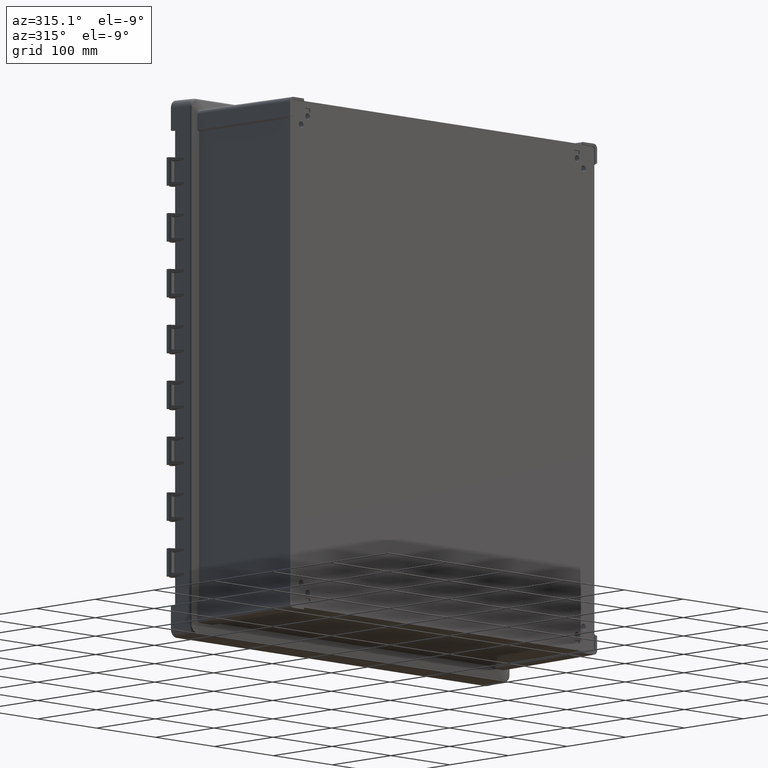
[diagram: clean part render]
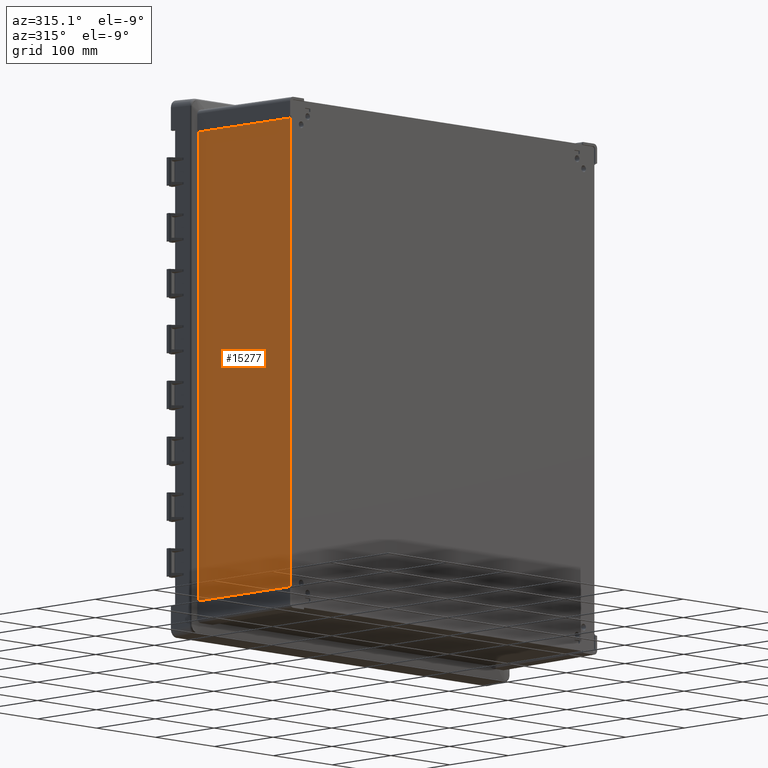
[diagram: same view with one face highlighted and labeled with its STEP entity id]
A machine part, auxiliary view. The second image highlights one B-rep face of the part: STEP entity #15277.
In plain terms, the highlighted planar face has unit normal (1, 0.0087, 0).
Its self-contained STEP definition (entity closure, byte-faithful):
#352 = LINE ( 'NONE', #29138, #8116 ) ;
#464 = AXIS2_PLACEMENT_3D ( 'NONE', #3308, #32133, #28802 ) ;
#692 = CARTESIAN_POINT ( 'NONE',  ( -259.3928791318999700, -35.19256569061000300, -285.4123440855000200 ) ) ;
#797 = LINE ( 'NONE', #29595, #17012 ) ;
#1220 = LINE ( 'NONE', #30055, #16944 ) ;
#1426 = CARTESIAN_POINT ( 'NONE',  ( -258.0471312288951300, -189.3999999999999500, 285.2709002705639100 ) ) ;
#3308 = CARTESIAN_POINT ( 'NONE',  ( -259.6999999999999900, 0.0000000000000000000, -106.9000000000000100 ) ) ;
#5146 = EDGE_CURVE ( 'NONE', #17879, #15356, #23351, .T. ) ;
#6559 = PLANE ( 'NONE',  #464 ) ;
#6754 = ORIENTED_EDGE ( 'NONE', *, *, #18947, .T. ) ;
#6851 = FACE_OUTER_BOUND ( 'NONE', #27648, .T. ) ;
#8116 = VECTOR ( 'NONE', #25832, 1000.000000000000100 ) ;
#13665 = VECTOR ( 'NONE', #16782, 1000.000000000000000 ) ;
#13918 = ORIENTED_EDGE ( 'NONE', *, *, #28345, .F. ) ;
#14587 = VERTEX_POINT ( 'NONE', #1426 ) ;
#15277 = ADVANCED_FACE ( 'NONE', ( #6851 ), #6559, .F. ) ;
#15356 = VERTEX_POINT ( 'NONE', #16616 ) ;
#16616 = CARTESIAN_POINT ( 'NONE',  ( -259.3928791318999700, -35.19256569061000300, 285.4123440855000200 ) ) ;
#16782 = DIRECTION ( 'NONE',  ( 0.0000000000000000000, 0.0000000000000000000, 1.000000000000000000 ) ) ;
#16944 = VECTOR ( 'NONE', #26702, 1000.000000000000100 ) ;
#17012 = VECTOR ( 'NONE', #26263, 1000.000000000000000 ) ;
#17879 = VERTEX_POINT ( 'NONE', #692 ) ;
#18849 = VERTEX_POINT ( 'NONE', #19181 ) ;
#18947 = EDGE_CURVE ( 'NONE', #17879, #18849, #1220, .T. ) ;
#19181 = CARTESIAN_POINT ( 'NONE',  ( -258.0471312289000100, -189.4000000000000100, -285.2709002675999800 ) ) ;
#20077 = CARTESIAN_POINT ( 'NONE',  ( -259.3928791318999700, -35.19256569061000300, -285.4123440855000200 ) ) ;
#23351 = LINE ( 'NONE', #20077, #13665 ) ;
#24313 = ORIENTED_EDGE ( 'NONE', *, *, #5146, .F. ) ;
#25832 = DIRECTION ( 'NONE',  ( 0.008726531902022103800, -0.9999615024556117700, -0.0009171955508223107100 ) ) ;
#26263 = DIRECTION ( 'NONE',  ( 0.0000000000000000000, 0.0000000000000000000, -1.000000000000000000 ) ) ;
#26702 = DIRECTION ( 'NONE',  ( 0.008726531902022103800, -0.9999615024556117700, 0.0009171955508223107100 ) ) ;
#27648 = EDGE_LOOP ( 'NONE', ( #27995, #24313, #6754, #13918 ) ) ;
#27995 = ORIENTED_EDGE ( 'NONE', *, *, #29741, .F. ) ;
#28345 = EDGE_CURVE ( 'NONE', #14587, #18849, #797, .T. ) ;
#28802 = DIRECTION ( 'NONE',  ( -0.008726535498373750800, 0.9999619230641713100, 0.0000000000000000000 ) ) ;
#29138 = CARTESIAN_POINT ( 'NONE',  ( -259.3928791318999700, -35.19256569061000300, 285.4123440855000200 ) ) ;
#29595 = CARTESIAN_POINT ( 'NONE',  ( -258.0471312289000100, -189.4000000000000100, 285.2709002675999800 ) ) ;
#29741 = EDGE_CURVE ( 'NONE', #15356, #14587, #352, .T. ) ;
#30055 = CARTESIAN_POINT ( 'NONE',  ( -259.3928791318999700, -35.19256569061000300, -285.4123440855000200 ) ) ;
#32133 = DIRECTION ( 'NONE',  ( 0.9999619230641713100, 0.008726535498373750800, 0.0000000000000000000 ) ) ;